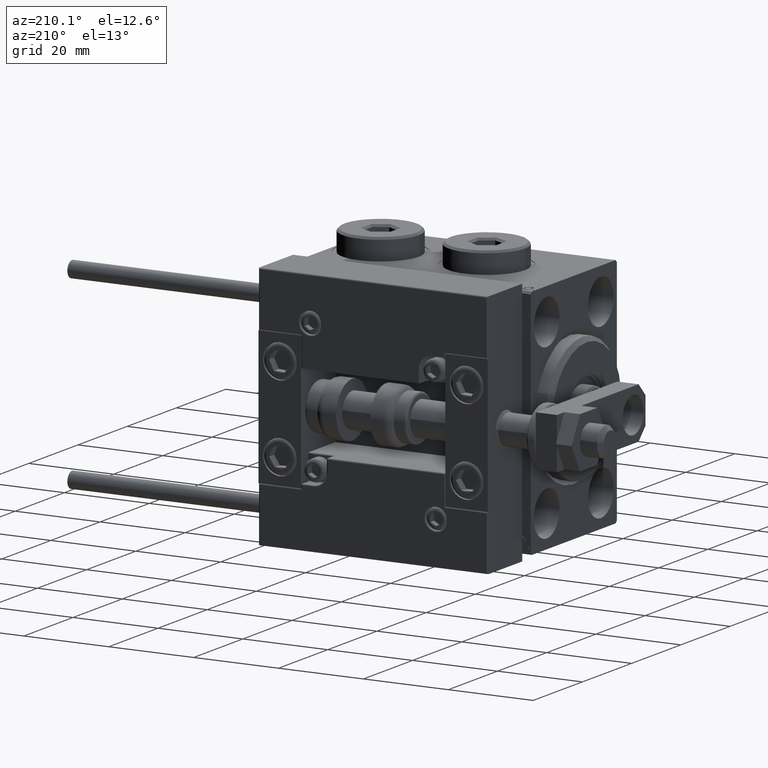
[diagram: clean part render]
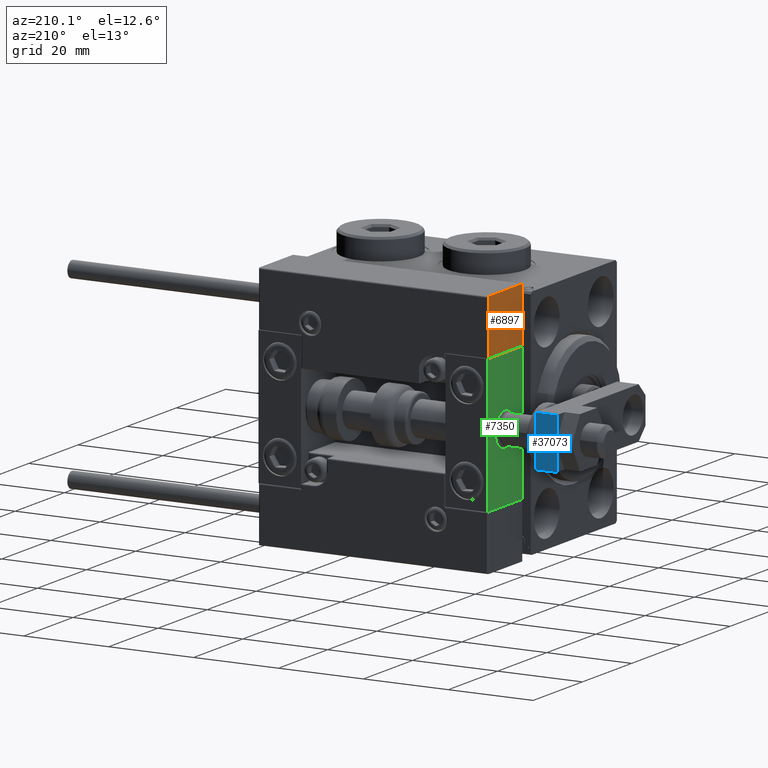
[diagram: same view with three faces highlighted in distinct colors, each labeled with its STEP entity id]
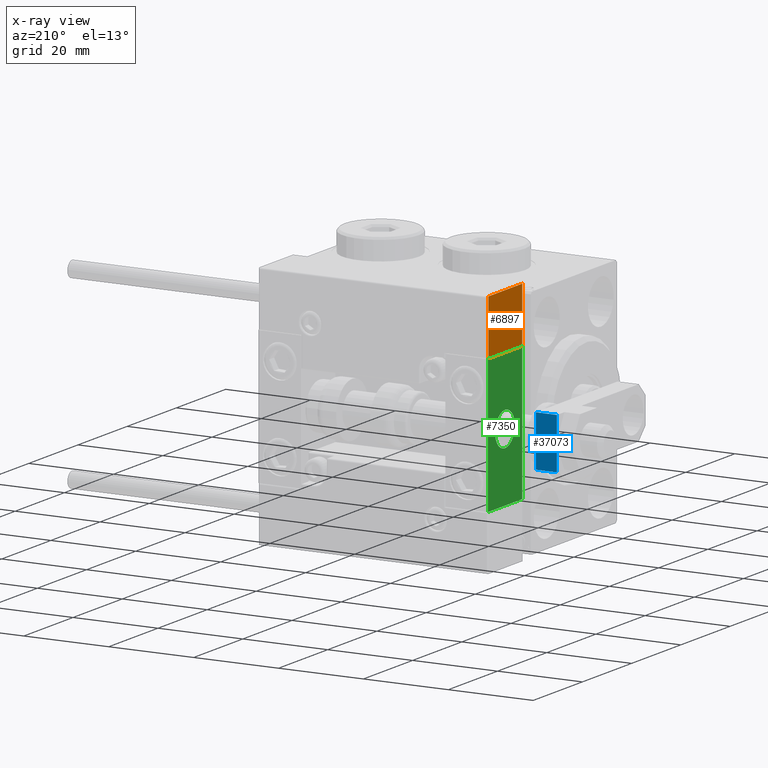
[diagram: x-ray of the same camera — body ghosted, the three highlighted faces saturated]
A machine part, auxiliary view with three faces highlighted in distinct colors.
The next image is the same camera in x-ray (body ghosted, the three faces saturated) — at least one of them is partly hidden behind the body in this view.
Their STEP definitions:

[orange] entity #6897 — the highlighted planar face has unit normal (1, -0, -0).
#36 = LINE ( 'NONE', #7867, #22322 ) ;
#1174 = CARTESIAN_POINT ( 'NONE',  ( 27.00000000000006395, 7.000000000000007994, 13.70000000000000107 ) ) ;
#1376 = ORIENTED_EDGE ( 'NONE', *, *, #8646, .F. ) ;
#1607 = EDGE_CURVE ( 'NONE', #9444, #44231, #11924, .T. ) ;
#1943 = DIRECTION ( 'NONE',  ( 0.000000000000000000, 0.000000000000000000, 1.000000000000000000 ) ) ;
#6500 = CARTESIAN_POINT ( 'NONE',  ( 27.00000000000006395, 7.000000000000007994, 0.000000000000000000 ) ) ;
#6516 = CARTESIAN_POINT ( 'NONE',  ( 27.00000000000006395, 20.00000000000001776, 0.000000000000000000 ) ) ;
#6897 = ADVANCED_FACE ( 'NONE', ( #33975 ), #38650, .F. ) ;
#7867 = CARTESIAN_POINT ( 'NONE',  ( 27.00000000000006395, 7.000000000000007994, 0.000000000000000000 ) ) ;
#8646 = EDGE_CURVE ( 'NONE', #14673, #21804, #30509, .T. ) ;
#9444 = VERTEX_POINT ( 'NONE', #1174 ) ;
#11746 = DIRECTION ( 'NONE',  ( -1.000000000000000000, 0.000000000000000000, 0.000000000000000000 ) ) ;
#11924 = LINE ( 'NONE', #35372, #42991 ) ;
#11981 = ORIENTED_EDGE ( 'NONE', *, *, #35499, .T. ) ;
#14563 = VECTOR ( 'NONE', #22689, 1000.000000000000000 ) ;
#14673 = VERTEX_POINT ( 'NONE', #48713 ) ;
#15042 = DIRECTION ( 'NONE',  ( -0.000000000000000000, -0.000000000000000000, -1.000000000000000000 ) ) ;
#18083 = CARTESIAN_POINT ( 'NONE',  ( 27.00000000000006395, 7.000000000000007994, 14.00000000000000000 ) ) ;
#21804 = VERTEX_POINT ( 'NONE', #6516 ) ;
#22322 = VECTOR ( 'NONE', #31583, 1000.000000000000000 ) ;
#22689 = DIRECTION ( 'NONE',  ( -0.000000000000000000, -1.000000000000000000, -0.000000000000000000 ) ) ;
#23868 = ORIENTED_EDGE ( 'NONE', *, *, #41653, .T. ) ;
#25287 = ORIENTED_EDGE ( 'NONE', *, *, #1607, .T. ) ;
#30509 = LINE ( 'NONE', #45631, #41488 ) ;
#31583 = DIRECTION ( 'NONE',  ( 0.000000000000000000, 1.000000000000000000, 0.000000000000000000 ) ) ;
#33975 = FACE_OUTER_BOUND ( 'NONE', #50101, .T. ) ;
#35372 = CARTESIAN_POINT ( 'NONE',  ( 27.00000000000006395, 7.000000000000007994, 14.00000000000000000 ) ) ;
#35499 = EDGE_CURVE ( 'NONE', #14673, #9444, #44481, .T. ) ;
#37291 = AXIS2_PLACEMENT_3D ( 'NONE', #18083, #11746, #1943 ) ;
#38650 = PLANE ( 'NONE',  #37291 ) ;
#41488 = VECTOR ( 'NONE', #49800, 1000.000000000000000 ) ;
#41653 = EDGE_CURVE ( 'NONE', #44231, #21804, #36, .T. ) ;
#42991 = VECTOR ( 'NONE', #15042, 1000.000000000000000 ) ;
#42997 = CARTESIAN_POINT ( 'NONE',  ( 27.00000000000006395, 7.000000000000007994, 13.70000000000000107 ) ) ;
#44231 = VERTEX_POINT ( 'NONE', #6500 ) ;
#44481 = LINE ( 'NONE', #42997, #14563 ) ;
#45631 = CARTESIAN_POINT ( 'NONE',  ( 27.00000000000006395, 20.00000000000001776, 14.00000000000000000 ) ) ;
#48713 = CARTESIAN_POINT ( 'NONE',  ( 27.00000000000006395, 20.00000000000001776, 13.70000000000000107 ) ) ;
#49800 = DIRECTION ( 'NONE',  ( -0.000000000000000000, -0.000000000000000000, -1.000000000000000000 ) ) ;
#50101 = EDGE_LOOP ( 'NONE', ( #1376, #11981, #25287, #23868 ) ) ;

[blue] entity #37073 — the highlighted planar face has unit normal (0, -1, 0).
#867 = LINE ( 'NONE', #1637, #33916 ) ;
#1637 = CARTESIAN_POINT ( 'NONE',  ( 6.000000000000008882, 36.00000000000000000, 5.000000000000000000 ) ) ;
#3222 = EDGE_CURVE ( 'NONE', #49407, #40869, #40047, .T. ) ;
#5292 = VECTOR ( 'NONE', #27033, 1000.000000000000000 ) ;
#10740 = PLANE ( 'NONE',  #43754 ) ;
#11256 = DIRECTION ( 'NONE',  ( 0.000000000000000000, -1.000000000000000000, 0.000000000000000000 ) ) ;
#11512 = FACE_OUTER_BOUND ( 'NONE', #12512, .T. ) ;
#12512 = EDGE_LOOP ( 'NONE', ( #51041, #50200, #25094, #47887 ) ) ;
#14630 = DIRECTION ( 'NONE',  ( -0.000000000000000000, -0.000000000000000000, -1.000000000000000000 ) ) ;
#19468 = CARTESIAN_POINT ( 'NONE',  ( 6.000000000000008882, 36.00000000000000000, 0.000000000000000000 ) ) ;
#20680 = DIRECTION ( 'NONE',  ( -1.000000000000000000, 0.000000000000000000, 0.000000000000000000 ) ) ;
#21047 = DIRECTION ( 'NONE',  ( -0.000000000000000000, -0.000000000000000000, -1.000000000000000000 ) ) ;
#23383 = LINE ( 'NONE', #19468, #5292 ) ;
#25094 = ORIENTED_EDGE ( 'NONE', *, *, #40471, .F. ) ;
#25280 = CARTESIAN_POINT ( 'NONE',  ( -5.999999999999991118, 36.00000000000000000, 5.000000000000000000 ) ) ;
#27033 = DIRECTION ( 'NONE',  ( -1.000000000000000000, 0.000000000000000000, 0.000000000000000000 ) ) ;
#27536 = EDGE_CURVE ( 'NONE', #32632, #40869, #23383, .T. ) ;
#27584 = CARTESIAN_POINT ( 'NONE',  ( 6.000000000000008882, 36.00000000000000000, 5.000000000000000000 ) ) ;
#28996 = VERTEX_POINT ( 'NONE', #27584 ) ;
#29352 = CARTESIAN_POINT ( 'NONE',  ( 6.000000000000008882, 36.00000000000000000, 0.000000000000000000 ) ) ;
#30494 = VECTOR ( 'NONE', #21047, 1000.000000000000000 ) ;
#32497 = CARTESIAN_POINT ( 'NONE',  ( -5.999999999999991118, 36.00000000000000000, 5.000000000000000000 ) ) ;
#32632 = VERTEX_POINT ( 'NONE', #29352 ) ;
#33916 = VECTOR ( 'NONE', #20680, 1000.000000000000000 ) ;
#33937 = LINE ( 'NONE', #50362, #38220 ) ;
#37073 = ADVANCED_FACE ( 'NONE', ( #11512 ), #10740, .F. ) ;
#38220 = VECTOR ( 'NONE', #14630, 1000.000000000000000 ) ;
#40047 = LINE ( 'NONE', #32497, #30494 ) ;
#40471 = EDGE_CURVE ( 'NONE', #28996, #49407, #867, .T. ) ;
#40869 = VERTEX_POINT ( 'NONE', #41429 ) ;
#41429 = CARTESIAN_POINT ( 'NONE',  ( -5.999999999999991118, 36.00000000000000000, 0.000000000000000000 ) ) ;
#43041 = DIRECTION ( 'NONE',  ( 0.000000000000000000, -0.000000000000000000, -1.000000000000000000 ) ) ;
#43754 = AXIS2_PLACEMENT_3D ( 'NONE', #46960, #11256, #43041 ) ;
#46960 = CARTESIAN_POINT ( 'NONE',  ( 6.000000000000008882, 36.00000000000000000, 5.000000000000000000 ) ) ;
#47887 = ORIENTED_EDGE ( 'NONE', *, *, #48330, .T. ) ;
#48330 = EDGE_CURVE ( 'NONE', #28996, #32632, #33937, .T. ) ;
#49407 = VERTEX_POINT ( 'NONE', #25280 ) ;
#50200 = ORIENTED_EDGE ( 'NONE', *, *, #3222, .F. ) ;
#50362 = CARTESIAN_POINT ( 'NONE',  ( 6.000000000000008882, 36.00000000000000000, 5.000000000000000000 ) ) ;
#51041 = ORIENTED_EDGE ( 'NONE', *, *, #27536, .T. ) ;

[green] entity #7350 — the highlighted planar face has unit normal (1, 0, -0).
#440 = VERTEX_POINT ( 'NONE', #20321 ) ;
#863 = ORIENTED_EDGE ( 'NONE', *, *, #3227, .F. ) ;
#2285 = EDGE_CURVE ( 'NONE', #2671, #39787, #32123, .T. ) ;
#2671 = VERTEX_POINT ( 'NONE', #32360 ) ;
#3110 = ORIENTED_EDGE ( 'NONE', *, *, #49302, .T. ) ;
#3227 = EDGE_CURVE ( 'NONE', #39702, #18643, #32247, .T. ) ;
#4786 = EDGE_CURVE ( 'NONE', #440, #37058, #34685, .T. ) ;
#5137 = CIRCLE ( 'NONE', #31749, 4.000000000000000000 ) ;
#5406 = EDGE_LOOP ( 'NONE', ( #29511, #47099, #863, #3110 ) ) ;
#6358 = VECTOR ( 'NONE', #33009, 1000.000000000000000 ) ;
#6504 = AXIS2_PLACEMENT_3D ( 'NONE', #10593, #34558, #30662 ) ;
#7350 = ADVANCED_FACE ( 'NONE', ( #14478, #47072 ), #38199, .F. ) ;
#7938 = DIRECTION ( 'NONE',  ( 0.000000000000000000, 0.000000000000000000, 1.000000000000000000 ) ) ;
#8566 = CARTESIAN_POINT ( 'NONE',  ( 10.00000000000000000, -7.000000000000000000, -16.00000000000000711 ) ) ;
#10262 = DIRECTION ( 'NONE',  ( 0.000000000000000000, 0.000000000000000000, 1.000000000000000000 ) ) ;
#10593 = CARTESIAN_POINT ( 'NONE',  ( 10.00000000000000000, 0.000000000000000000, 0.000000000000000000 ) ) ;
#11328 = CARTESIAN_POINT ( 'NONE',  ( 10.00000000000000000, 0.000000000000000000, 0.000000000000000000 ) ) ;
#12314 = DIRECTION ( 'NONE',  ( 0.000000000000000000, 0.000000000000000000, -1.000000000000000000 ) ) ;
#12442 = CARTESIAN_POINT ( 'NONE',  ( 10.00000000000000000, 7.000000000000000000, 15.99999999999999289 ) ) ;
#12832 = CARTESIAN_POINT ( 'NONE',  ( 10.00000000000000000, -7.000000000000000000, 15.99999999999999289 ) ) ;
#14478 = FACE_BOUND ( 'NONE', #22540, .T. ) ;
#14887 = VECTOR ( 'NONE', #29065, 1000.000000000000000 ) ;
#18354 = EDGE_CURVE ( 'NONE', #37058, #440, #5137, .T. ) ;
#18422 = ORIENTED_EDGE ( 'NONE', *, *, #18354, .T. ) ;
#18643 = VERTEX_POINT ( 'NONE', #31597 ) ;
#19594 = CARTESIAN_POINT ( 'NONE',  ( 10.00000000000000000, 4.898587196589412829E-16, -4.000000000000000000 ) ) ;
#20321 = CARTESIAN_POINT ( 'NONE',  ( 10.00000000000000000, 0.000000000000000000, 4.000000000000000000 ) ) ;
#22540 = EDGE_LOOP ( 'NONE', ( #43134, #18422 ) ) ;
#24750 = AXIS2_PLACEMENT_3D ( 'NONE', #45447, #29316, #10262 ) ;
#26974 = DIRECTION ( 'NONE',  ( -1.000000000000000000, 0.000000000000000000, 0.000000000000000000 ) ) ;
#28655 = LINE ( 'NONE', #44546, #40762 ) ;
#29065 = DIRECTION ( 'NONE',  ( 0.000000000000000000, -1.000000000000000000, 0.000000000000000000 ) ) ;
#29316 = DIRECTION ( 'NONE',  ( -1.000000000000000000, 0.000000000000000000, 0.000000000000000000 ) ) ;
#29511 = ORIENTED_EDGE ( 'NONE', *, *, #2285, .T. ) ;
#30662 = DIRECTION ( 'NONE',  ( -0.000000000000000000, 0.000000000000000000, 1.000000000000000000 ) ) ;
#31498 = CARTESIAN_POINT ( 'NONE',  ( 10.00000000000000000, 7.000000000000000000, 15.99999999999999289 ) ) ;
#31597 = CARTESIAN_POINT ( 'NONE',  ( 10.00000000000000000, 7.000000000000000000, -16.00000000000000711 ) ) ;
#31749 = AXIS2_PLACEMENT_3D ( 'NONE', #11328, #26974, #7938 ) ;
#32123 = LINE ( 'NONE', #12832, #45408 ) ;
#32247 = LINE ( 'NONE', #12442, #6358 ) ;
#32360 = CARTESIAN_POINT ( 'NONE',  ( 10.00000000000000000, -7.000000000000000000, 15.99999999999999289 ) ) ;
#32813 = DIRECTION ( 'NONE',  ( 0.000000000000000000, -1.000000000000000000, 0.000000000000000000 ) ) ;
#33009 = DIRECTION ( 'NONE',  ( 0.000000000000000000, 0.000000000000000000, -1.000000000000000000 ) ) ;
#34558 = DIRECTION ( 'NONE',  ( -1.000000000000000000, 0.000000000000000000, -0.000000000000000000 ) ) ;
#34685 = CIRCLE ( 'NONE', #24750, 4.000000000000000000 ) ;
#36355 = CARTESIAN_POINT ( 'NONE',  ( 10.00000000000000000, 7.000000000000000000, -16.00000000000000711 ) ) ;
#37058 = VERTEX_POINT ( 'NONE', #19594 ) ;
#38199 = PLANE ( 'NONE',  #6504 ) ;
#39702 = VERTEX_POINT ( 'NONE', #31498 ) ;
#39787 = VERTEX_POINT ( 'NONE', #8566 ) ;
#40762 = VECTOR ( 'NONE', #32813, 1000.000000000000000 ) ;
#43134 = ORIENTED_EDGE ( 'NONE', *, *, #4786, .T. ) ;
#43704 = EDGE_CURVE ( 'NONE', #18643, #39787, #44180, .T. ) ;
#44180 = LINE ( 'NONE', #36355, #14887 ) ;
#44546 = CARTESIAN_POINT ( 'NONE',  ( 10.00000000000000000, 7.000000000000000000, 15.99999999999999289 ) ) ;
#45408 = VECTOR ( 'NONE', #12314, 1000.000000000000000 ) ;
#45447 = CARTESIAN_POINT ( 'NONE',  ( 10.00000000000000000, 0.000000000000000000, 0.000000000000000000 ) ) ;
#47072 = FACE_OUTER_BOUND ( 'NONE', #5406, .T. ) ;
#47099 = ORIENTED_EDGE ( 'NONE', *, *, #43704, .F. ) ;
#49302 = EDGE_CURVE ( 'NONE', #39702, #2671, #28655, .T. ) ;